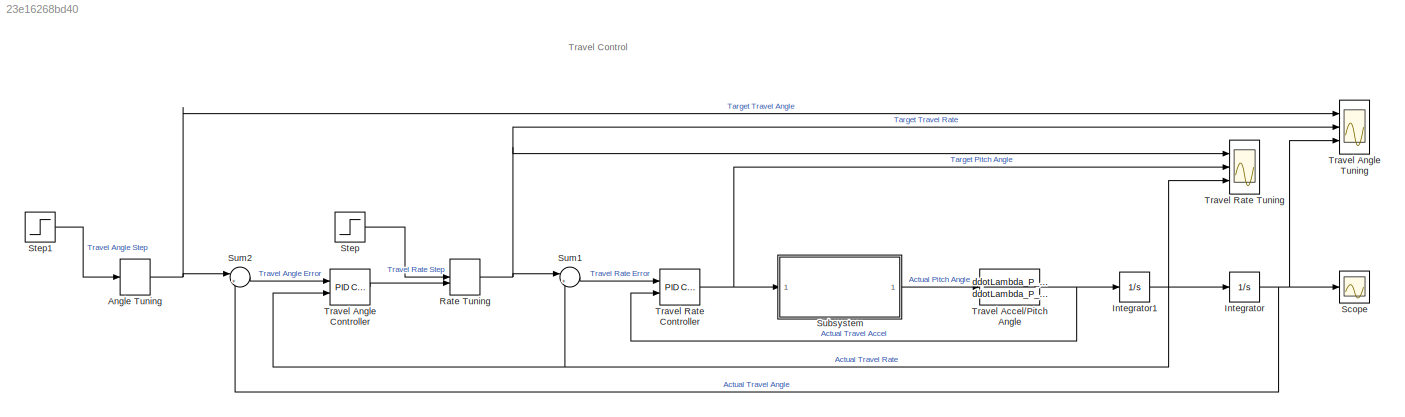
MODEL slx_23e16268bd40
KIND model
CONFIG AbsTol = auto
CONFIG EnableMultiTasking = off
CONFIG FixedStep = auto
CONFIG MaxStep = auto
CONFIG MinStep = auto
CONFIG RelTol = 1e-3
CONFIG SampleTimeConstraint = Unconstrained
CONFIG Solver = VariableStepAuto
CONFIG SolverName = VariableStepAuto
CONFIG StartTime = 0.0
CONFIG StopTime = 20
BLOCK [ManualSwitch] Angle Tuning
BLOCK [Integrator] Integrator
  Ports = [1, 1]
BLOCK [Integrator] Integrator1
  Ports = [1, 1]
BLOCK [ManualSwitch] Rate Tuning
  CurrentSetting = 0
BLOCK [Scope] Scope
  Floating = off
  NumInputPorts = 1
  Ports = [1]
  ScopeSpecificationString = Simulink.scopes.TimeScopeBlockCfg('CurrentConfiguration', extmgr.ConfigurationSet(extmgr.Configuration('Core','General UI',true),extmgr.Configuration('Core','Source UI',true),extmgr.Configuration('Sources','WiredSimulink',true),extmgr.Configuration('Visuals','Time Domain',true),extmgr.Configuration('Tools','Plot Navigation',true),extmgr.Configuration('Tools','Measurements',true)),'Version','2024b'...<+1ch>
BLOCK [Step] Step
  After = 45 * pi/180
  SampleTime = 0
BLOCK [Step] Step1
  After = pi
  SampleTime = 0
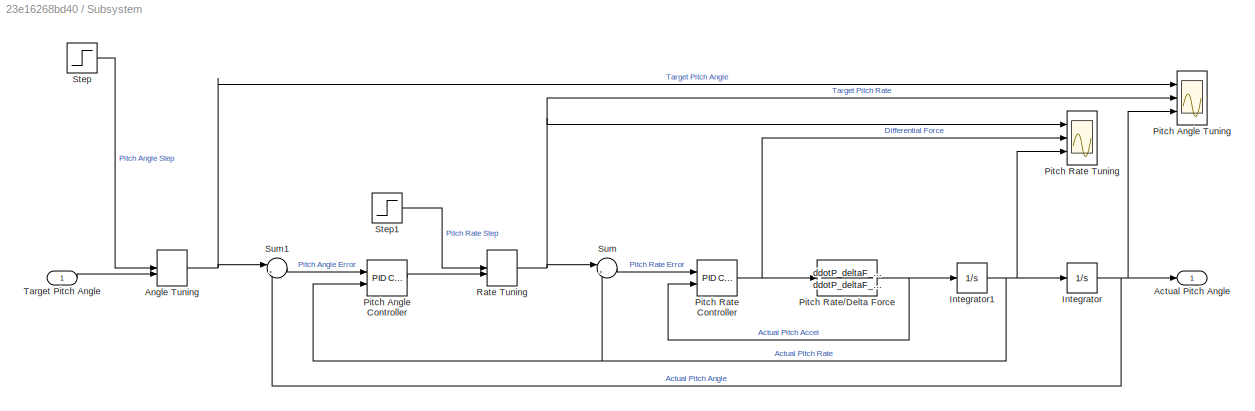
BLOCK [SubSystem] Subsystem
  Ports = [1, 1]
BLOCK [Outport] Subsystem/Actual Pitch Angle
BLOCK [ManualSwitch] Subsystem/Angle Tuning
  CurrentSetting = 0
BLOCK [Integrator] Subsystem/Integrator
  Ports = [1, 1]
BLOCK [Integrator] Subsystem/Integrator1
  Ports = [1, 1]
BLOCK [Reference] Subsystem/Pitch Angle Controller  REF=simulink/Continuous/PID Controller
  Ports = [2, 1]
  SourceBlock = simulink/Continuous/PID Controller
  SourceType = PID 1dof
BLOCK [Scope] Subsystem/Pitch Angle Tuning
  DefaultConfigurationName = spbscopes.TimeScopeBlockCfg
  Floating = off
  NumInputPorts = 3
  Ports = [3]
  ScopeSpecificationString = spbscopes.TimeScopeBlockCfg('CurrentConfiguration', extmgr.ConfigurationSet(extmgr.Configuration('Core','General UI',true,'FigureColor',[0.156862745098039 0.156862745098039 0.156862745098039]),extmgr.Configuration('Core','Source UI',true),extmgr.Configuration('Sources','WiredSimulink',true,'DataLoggingVariableName','ScopeData1'),extmgr.Configuration('Visuals','Time Domain',true,'DisplayPropertyDef...<+1691ch>
  UserDataPersistent = on
BLOCK [Reference] Subsystem/Pitch Rate Controller  REF=simulink/Continuous/PID Controller
  Ports = [2, 1]
  SourceBlock = simulink/Continuous/PID Controller
  SourceType = PID 1dof
BLOCK [Scope] Subsystem/Pitch Rate Tuning
  DefaultConfigurationName = spbscopes.TimeScopeBlockCfg
  Floating = off
  NumInputPorts = 3
  Ports = [3]
  ScopeSpecificationString = spbscopes.TimeScopeBlockCfg('CurrentConfiguration', extmgr.ConfigurationSet(extmgr.Configuration('Core','General UI',true,'FigureColor',[0.156862745098039 0.156862745098039 0.156862745098039]),extmgr.Configuration('Core','Source UI',true),extmgr.Configuration('Sources','WiredSimulink',true,'DataLoggingVariableName','ScopeData3'),extmgr.Configuration('Visuals','Time Domain',true,'DisplayPropertyDef...<+1684ch>
  UserDataPersistent = on
BLOCK [TransferFcn] Subsystem/Pitch Rate//Delta Force
  Denominator = ddotP_deltaF_den
  Numerator = ddotP_deltaF_num
BLOCK [ManualSwitch] Subsystem/Rate Tuning
  CurrentSetting = 0
BLOCK [Step] Subsystem/Step
  After = 30 * pi/180
  SampleTime = 0
BLOCK [Step] Subsystem/Step1
  After = pi / 2
  SampleTime = 0
  Time = 0
BLOCK [Sum] Subsystem/Sum
  Inputs = |+-
  Ports = [2, 1]
BLOCK [Sum] Subsystem/Sum1
  Inputs = |+-
  Ports = [2, 1]
BLOCK [Inport] Subsystem/Target Pitch Angle
BLOCK [Sum] Sum1
  Inputs = |+-
  Ports = [2, 1]
BLOCK [Sum] Sum2
  Inputs = |+-
  Ports = [2, 1]
BLOCK [TransferFcn] Travel Accel//Pitch Angle
  Denominator = ddotLambda_P_den
  Numerator = ddotLambda_P_num
BLOCK [Reference] Travel Angle Controller  REF=simulink/Continuous/PID Controller
  Ports = [2, 1]
  SourceBlock = simulink/Continuous/PID Controller
  SourceType = PID 1dof
BLOCK [Scope] Travel Angle Tuning
  DefaultConfigurationName = spbscopes.TimeScopeBlockCfg
  Floating = off
  NumInputPorts = 3
  Ports = [3]
  ScopeSpecificationString = spbscopes.TimeScopeBlockCfg('CurrentConfiguration', extmgr.ConfigurationSet(extmgr.Configuration('Core','General UI',true,'FigureColor',[0.156862745098039 0.156862745098039 0.156862745098039]),extmgr.Configuration('Core','Source UI',true),extmgr.Configuration('Sources','WiredSimulink',true,'DataLoggingVariableName','ScopeData4'),extmgr.Configuration('Visuals','Time Domain',true,'DisplayPropertyDef...<+1693ch>
  UserDataPersistent = on
BLOCK [Reference] Travel Rate Controller  REF=simulink/Continuous/PID Controller
  Ports = [2, 1]
  SourceBlock = simulink/Continuous/PID Controller
  SourceType = PID 1dof
BLOCK [Scope] Travel Rate Tuning
  DefaultConfigurationName = spbscopes.TimeScopeBlockCfg
  Floating = off
  NumInputPorts = 3
  Ports = [3]
  ScopeSpecificationString = spbscopes.TimeScopeBlockCfg('CurrentConfiguration', extmgr.ConfigurationSet(extmgr.Configuration('Core','General UI',true,'FigureColor',[0.156862745098039 0.156862745098039 0.156862745098039]),extmgr.Configuration('Core','Source UI',true),extmgr.Configuration('Sources','WiredSimulink',true,'DataLoggingVariableName','ScopeData2'),extmgr.Configuration('Visuals','Time Domain',true,'DisplayPropertyDef...<+1688ch>
  UserDataPersistent = on
ANNOTATION (root): Travel Control
NET Angle Tuning:1 -> Sum2:1, Travel Angle Tuning:1
NET Integrator1:1 -> Integrator:1, Sum1:2, Travel Angle Controller:2, Travel Rate Tuning:3
NET Integrator:1 -> Scope:1, Sum2:2, Travel Angle Tuning:3
NET Rate Tuning:1 -> Sum1:1, Travel Angle Tuning:2, Travel Rate Tuning:1
LINE Step1:1 -> Angle Tuning:1
LINE Step:1 -> Rate Tuning:1
NET Subsystem/Angle Tuning:1 -> Subsystem/Pitch Angle Tuning:1, Subsystem/Sum1:1
NET Subsystem/Integrator1:1 -> Subsystem/Integrator:1, Subsystem/Pitch Angle Controller:2, Subsystem/Pitch Rate Tuning:3, Subsystem/Sum:2
NET Subsystem/Integrator:1 -> Subsystem/Actual Pitch Angle:1, Subsystem/Pitch Angle Tuning:3, Subsystem/Sum1:2
LINE Subsystem/Pitch Angle Controller:1 -> Subsystem/Rate Tuning:2
NET Subsystem/Pitch Rate Controller:1 -> Subsystem/Pitch Rate Tuning:2, Subsystem/Pitch Rate//Delta Force:1
NET Subsystem/Pitch Rate//Delta Force:1 -> Subsystem/Integrator1:1, Subsystem/Pitch Rate Controller:2
NET Subsystem/Rate Tuning:1 -> Subsystem/Pitch Angle Tuning:2, Subsystem/Pitch Rate Tuning:1, Subsystem/Sum:1
LINE Subsystem/Step1:1 -> Subsystem/Rate Tuning:1
LINE Subsystem/Step:1 -> Subsystem/Angle Tuning:1
LINE Subsystem/Sum1:1 -> Subsystem/Pitch Angle Controller:1
LINE Subsystem/Sum:1 -> Subsystem/Pitch Rate Controller:1
LINE Subsystem/Target Pitch Angle:1 -> Subsystem/Angle Tuning:2
LINE Subsystem:1 -> Travel Accel//Pitch Angle:1
LINE Sum1:1 -> Travel Rate Controller:1
LINE Sum2:1 -> Travel Angle Controller:1
NET Travel Accel//Pitch Angle:1 -> Integrator1:1, Travel Rate Controller:2
LINE Travel Angle Controller:1 -> Rate Tuning:2
NET Travel Rate Controller:1 -> Subsystem:1, Travel Rate Tuning:2
note: NET lines group one-source signal fan-out (src -> all destinations, sorted); 1:1 wires keep LINE
